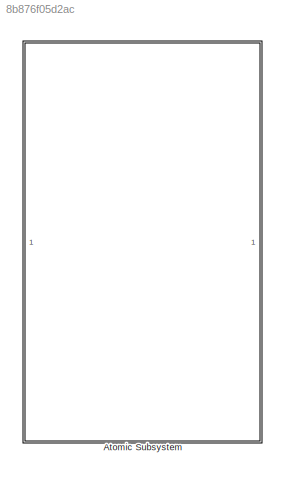
MODEL slx_8b876f05d2ac
KIND model
CONFIG AbsTol = auto
CONFIG EnableMultiTasking = off
CONFIG FixedStep = auto
CONFIG MaxStep = auto
CONFIG MinStep = auto
CONFIG RelTol = 1e-3
CONFIG SampleTimeConstraint = Unconstrained
CONFIG SolverName = FixedStepAuto
CONFIG StartTime = 0.0
CONFIG StopTime = 10.0
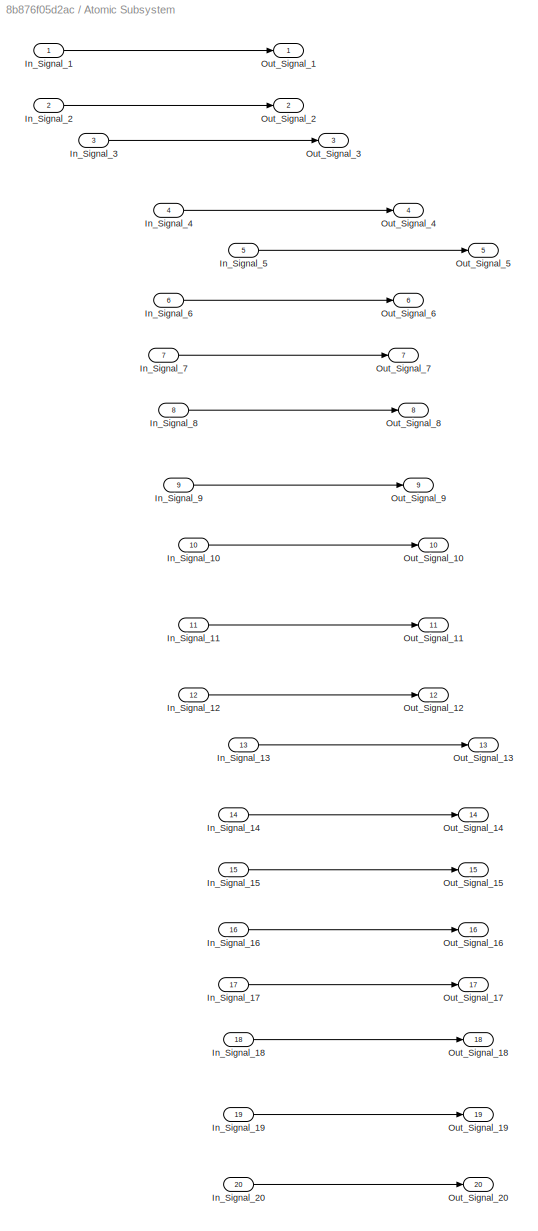
BLOCK [SubSystem] Atomic Subsystem
  TreatAsAtomicUnit = on
BLOCK [Inport] Atomic Subsystem/In_Signal_1
BLOCK [Inport] Atomic Subsystem/In_Signal_10
  Port = 10
BLOCK [Inport] Atomic Subsystem/In_Signal_11
  Port = 11
BLOCK [Inport] Atomic Subsystem/In_Signal_12
  Port = 12
BLOCK [Inport] Atomic Subsystem/In_Signal_13
  Port = 13
BLOCK [Inport] Atomic Subsystem/In_Signal_14
  Port = 14
BLOCK [Inport] Atomic Subsystem/In_Signal_15
  Port = 15
BLOCK [Inport] Atomic Subsystem/In_Signal_16
  Port = 16
BLOCK [Inport] Atomic Subsystem/In_Signal_17
  Port = 17
BLOCK [Inport] Atomic Subsystem/In_Signal_18
  Port = 18
BLOCK [Inport] Atomic Subsystem/In_Signal_19
  Port = 19
BLOCK [Inport] Atomic Subsystem/In_Signal_2
  Port = 2
BLOCK [Inport] Atomic Subsystem/In_Signal_20
  Port = 20
BLOCK [Inport] Atomic Subsystem/In_Signal_3
  Port = 3
BLOCK [Inport] Atomic Subsystem/In_Signal_4
  Port = 4
BLOCK [Inport] Atomic Subsystem/In_Signal_5
  Port = 5
BLOCK [Inport] Atomic Subsystem/In_Signal_6
  Port = 6
BLOCK [Inport] Atomic Subsystem/In_Signal_7
  Port = 7
BLOCK [Inport] Atomic Subsystem/In_Signal_8
  Port = 8
BLOCK [Inport] Atomic Subsystem/In_Signal_9
  Port = 9
BLOCK [Outport] Atomic Subsystem/Out_Signal_1
BLOCK [Outport] Atomic Subsystem/Out_Signal_10
  Port = 10
BLOCK [Outport] Atomic Subsystem/Out_Signal_11
  Port = 11
BLOCK [Outport] Atomic Subsystem/Out_Signal_12
  Port = 12
BLOCK [Outport] Atomic Subsystem/Out_Signal_13
  Port = 13
BLOCK [Outport] Atomic Subsystem/Out_Signal_14
  Port = 14
BLOCK [Outport] Atomic Subsystem/Out_Signal_15
  Port = 15
BLOCK [Outport] Atomic Subsystem/Out_Signal_16
  Port = 16
BLOCK [Outport] Atomic Subsystem/Out_Signal_17
  Port = 17
BLOCK [Outport] Atomic Subsystem/Out_Signal_18
  Port = 18
BLOCK [Outport] Atomic Subsystem/Out_Signal_19
  Port = 19
BLOCK [Outport] Atomic Subsystem/Out_Signal_2
  Port = 2
BLOCK [Outport] Atomic Subsystem/Out_Signal_20
  Port = 20
BLOCK [Outport] Atomic Subsystem/Out_Signal_3
  Port = 3
BLOCK [Outport] Atomic Subsystem/Out_Signal_4
  Port = 4
BLOCK [Outport] Atomic Subsystem/Out_Signal_5
  Port = 5
BLOCK [Outport] Atomic Subsystem/Out_Signal_6
  Port = 6
BLOCK [Outport] Atomic Subsystem/Out_Signal_7
  Port = 7
BLOCK [Outport] Atomic Subsystem/Out_Signal_8
  Port = 8
BLOCK [Outport] Atomic Subsystem/Out_Signal_9
  Port = 9
LINE Atomic Subsystem/In_Signal_10:1 -> Atomic Subsystem/Out_Signal_10:1
LINE Atomic Subsystem/In_Signal_11:1 -> Atomic Subsystem/Out_Signal_11:1
LINE Atomic Subsystem/In_Signal_12:1 -> Atomic Subsystem/Out_Signal_12:1
LINE Atomic Subsystem/In_Signal_13:1 -> Atomic Subsystem/Out_Signal_13:1
LINE Atomic Subsystem/In_Signal_14:1 -> Atomic Subsystem/Out_Signal_14:1
LINE Atomic Subsystem/In_Signal_15:1 -> Atomic Subsystem/Out_Signal_15:1
LINE Atomic Subsystem/In_Signal_16:1 -> Atomic Subsystem/Out_Signal_16:1
LINE Atomic Subsystem/In_Signal_17:1 -> Atomic Subsystem/Out_Signal_17:1
LINE Atomic Subsystem/In_Signal_18:1 -> Atomic Subsystem/Out_Signal_18:1
LINE Atomic Subsystem/In_Signal_19:1 -> Atomic Subsystem/Out_Signal_19:1
LINE Atomic Subsystem/In_Signal_1:1 -> Atomic Subsystem/Out_Signal_1:1
LINE Atomic Subsystem/In_Signal_20:1 -> Atomic Subsystem/Out_Signal_20:1
LINE Atomic Subsystem/In_Signal_2:1 -> Atomic Subsystem/Out_Signal_2:1
LINE Atomic Subsystem/In_Signal_3:1 -> Atomic Subsystem/Out_Signal_3:1
LINE Atomic Subsystem/In_Signal_4:1 -> Atomic Subsystem/Out_Signal_4:1
LINE Atomic Subsystem/In_Signal_5:1 -> Atomic Subsystem/Out_Signal_5:1
LINE Atomic Subsystem/In_Signal_6:1 -> Atomic Subsystem/Out_Signal_6:1
LINE Atomic Subsystem/In_Signal_7:1 -> Atomic Subsystem/Out_Signal_7:1
LINE Atomic Subsystem/In_Signal_8:1 -> Atomic Subsystem/Out_Signal_8:1
LINE Atomic Subsystem/In_Signal_9:1 -> Atomic Subsystem/Out_Signal_9:1
